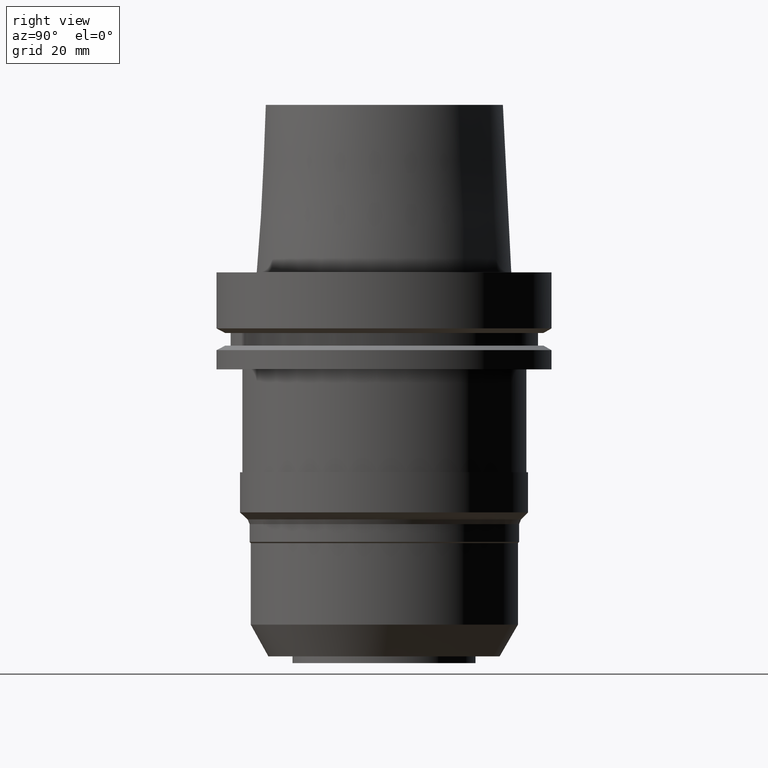
[diagram: clean part render]
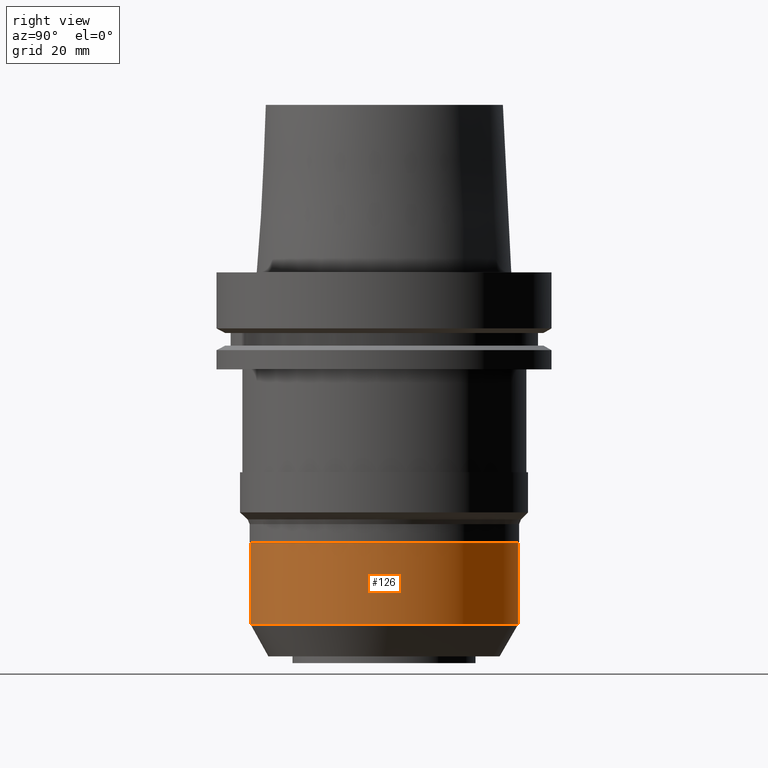
[diagram: same view with one face highlighted and labeled with its STEP entity id]
A machine part, right view. The second image highlights one B-rep face of the part: STEP entity #126.
In plain terms, the highlighted cylindrical surface (bore or boss wall) has radius 40 mm, axis along (0, 0, -1).
Its self-contained STEP definition (entity closure, byte-faithful):
#126=ADVANCED_FACE('Unnamed[1]',(#292,#293),#294,.T.);
#141=EDGE_CURVE('Unnamed[1]',#316,#316,#317,.T.);
#179=EDGE_CURVE('Unnamed[1]',#375,#375,#376,.T.);
#292=FACE_BOUND('',#502,.T.);
#293=FACE_BOUND('',#503,.T.);
#294=CYLINDRICAL_SURFACE('',#504,40.0000000000001);
#316=VERTEX_POINT('',#532);
#317=CIRCLE('',#533,40.0000000000001);
#375=VERTEX_POINT('',#607);
#376=CIRCLE('',#608,40.0000000000001);
#502=EDGE_LOOP('',(#720));
#503=EDGE_LOOP('',(#721));
#504=AXIS2_PLACEMENT_3D('',#722,#723,#724);
#532=CARTESIAN_POINT('',(4.95063468555321E-015,40.0000000000001,-80.8500000000005));
#533=AXIS2_PLACEMENT_3D('',#748,#749,#750);
#607=CARTESIAN_POINT('',(6.44164132990738E-015,40.0000000000001,-105.199986386153));
#608=AXIS2_PLACEMENT_3D('',#813,#814,#815);
#720=ORIENTED_EDGE('',*,*,#179,.F.);
#721=ORIENTED_EDGE('',*,*,#141,.T.);
#722=CARTESIAN_POINT('',(5.69613800773029E-015,1.13922760154606E-014,-93.0249931930768));
#723=DIRECTION('',(6.12323399573677E-017,1.2246467991472E-016,-1.0));
#724=DIRECTION('',(-1.23259516440783E-032,1.0,1.2246467991472E-016));
#748=CARTESIAN_POINT('',(4.95063468555321E-015,9.90126937110641E-015,-80.8500000000005));
#749=DIRECTION('',(6.12323399573677E-017,1.2246467991472E-016,-1.0));
#750=DIRECTION('',(-1.23259516440783E-032,1.0,1.2246467991472E-016));
#813=CARTESIAN_POINT('',(6.44164132990738E-015,1.28832826598148E-014,-105.199986386153));
#814=DIRECTION('',(6.12323399573677E-017,1.2246467991472E-016,-1.0));
#815=DIRECTION('',(-1.23259516440783E-032,1.0,1.2246467991472E-016));